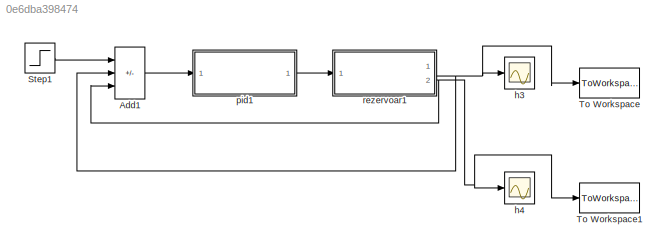
MODEL slx_0e6dba398474
KIND model
CONFIG AbsTol = auto
CONFIG EnableMultiTasking = on
CONFIG FixedStep = auto
CONFIG MaxStep = auto
CONFIG MinStep = auto
CONFIG RelTol = 1e-3
CONFIG SampleTimeConstraint = Unconstrained
CONFIG Solver = ode45
CONFIG SolverName = ode45
CONFIG StartTime = 0.0
CONFIG StopTime = 500
BLOCK [Sum] Add1
  IconShape = rectangular
  Inputs = +--
  Ports = [3, 1]
BLOCK [Step] Step1
  After = 15
  Before = 1
  SampleTime = 0
  Time = 0
BLOCK [ToWorkspace] To Workspace
  FixptAsFi = on
  MaxDataPoints = inf
  Ports = [1]
  SampleTime = -1
  VariableName = p1
BLOCK [ToWorkspace] To Workspace1
  FixptAsFi = on
  MaxDataPoints = inf
  Ports = [1]
  SampleTime = -1
  VariableName = p2
BLOCK [Scope] h3
  Floating = off
  NumInputPorts = 1
  Ports = [1]
  ScopeSpecificationString = C++SS(StrPVP('Location','[423, 334, 843, 637]'),StrPVP('Open','off'),MxPVP('AxesTitles',54,'struct(''axes1'',''%<SignalLabel>'')'),MxPVP('ScopeGraphics',57,'struct(''FigureColor'',''[0.501960784313725 0.501960784313725 0.501960784313725]'',''AxesColor'',''[1 1 1]'',''AxesTickColor'',''[0 0 0]'',''LineColors'',''[1 0 0;1 0 1;0 1 1;1 0 0;0 1 0;0 0 1]'',''LineStyles'',''-|-|-|-|-|-'',''LineWidths'','...<+236ch>
BLOCK [Scope] h4
  Floating = off
  NumInputPorts = 1
  Ports = [1]
  ScopeSpecificationString = C++SS(StrPVP('Location','[188, 365, 677, 735]'),StrPVP('Open','off'),MxPVP('AxesTitles',54,'struct(''axes1'',''%<SignalLabel>'')'),MxPVP('ScopeGraphics',57,'struct(''FigureColor'',''[0.501960784313725 0.501960784313725 0.501960784313725]'',''AxesColor'',''[1 1 1]'',''AxesTickColor'',''[0 0 0]'',''LineColors'',''[1 0 0;1 0 1;0 1 1;1 0 0;0 1 0;0 0 1]'',''LineStyles'',''-|-|-|-|-|-'',''LineWidths'','...<+236ch>
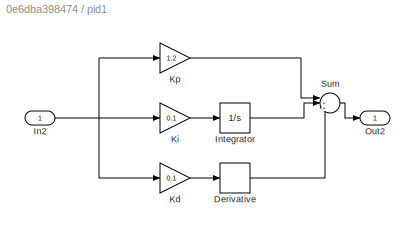
BLOCK [SubSystem] pid1
  Ports = [1, 1]
  RequestExecContextInheritance = off
BLOCK [Derivative] pid1/Derivative
BLOCK [Inport] pid1/In2
BLOCK [Integrator] pid1/Integrator
  Ports = [1, 1]
BLOCK [Gain] pid1/Kd
  Gain = 0.1
BLOCK [Gain] pid1/Ki
  Gain = 0.1
BLOCK [Gain] pid1/Kp
  Gain = 1.2
BLOCK [Outport] pid1/Out2
BLOCK [Sum] pid1/Sum
  Inputs = |+++
  Ports = [3, 1]
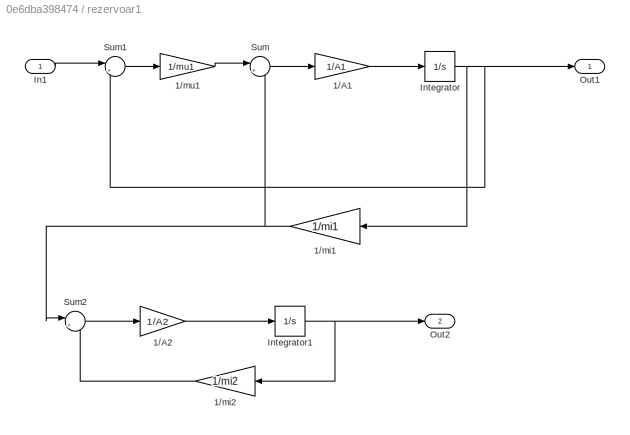
BLOCK [SubSystem] rezervoar1
  Ports = [1, 2]
  RequestExecContextInheritance = off
BLOCK [Gain] rezervoar1/1//A1
  Gain = 1/A1
BLOCK [Gain] rezervoar1/1//A2
  Gain = 1/A2
BLOCK [Gain] rezervoar1/1//mi1
  Gain = 1/mi1
  NameLocation = top
BLOCK [Gain] rezervoar1/1//mi2
  Gain = 1/mi2
  NameLocation = top
BLOCK [Gain] rezervoar1/1//mu1
  Gain = 1/mu1
BLOCK [Inport] rezervoar1/In1
BLOCK [Integrator] rezervoar1/Integrator
  InitialCondition = 1
  Ports = [1, 1]
BLOCK [Integrator] rezervoar1/Integrator1
  InitialCondition = 1
  Ports = [1, 1]
BLOCK [Outport] rezervoar1/Out1
BLOCK [Outport] rezervoar1/Out2
  Port = 2
BLOCK [Sum] rezervoar1/Sum
  Inputs = |+-
  Ports = [2, 1]
BLOCK [Sum] rezervoar1/Sum1
  Inputs = |+-
  Ports = [2, 1]
BLOCK [Sum] rezervoar1/Sum2
  Inputs = |+-
  Ports = [2, 1]
LINE Add1:1 -> pid1:1
LINE Step1:1 -> Add1:1
LINE pid1/Derivative:1 -> pid1/Sum:3
NET pid1/In2:1 -> pid1/Kd:1, pid1/Ki:1, pid1/Kp:1
LINE pid1/Integrator:1 -> pid1/Sum:2
LINE pid1/Kd:1 -> pid1/Derivative:1
LINE pid1/Ki:1 -> pid1/Integrator:1
LINE pid1/Kp:1 -> pid1/Sum:1
LINE pid1/Sum:1 -> pid1/Out2:1
LINE pid1:1 -> rezervoar1:1
LINE rezervoar1/1//A1:1 -> rezervoar1/Integrator:1
LINE rezervoar1/1//A2:1 -> rezervoar1/Integrator1:1
NET rezervoar1/1//mi1:1 -> rezervoar1/Sum2:1, rezervoar1/Sum:2
LINE rezervoar1/1//mi2:1 -> rezervoar1/Sum2:2
LINE rezervoar1/1//mu1:1 -> rezervoar1/Sum:1
LINE rezervoar1/In1:1 -> rezervoar1/Sum1:1
NET rezervoar1/Integrator1:1 -> rezervoar1/1//mi2:1, rezervoar1/Out2:1
NET rezervoar1/Integrator:1 -> rezervoar1/1//mi1:1, rezervoar1/Out1:1, rezervoar1/Sum1:2
LINE rezervoar1/Sum1:1 -> rezervoar1/1//mu1:1
LINE rezervoar1/Sum2:1 -> rezervoar1/1//A2:1
LINE rezervoar1/Sum:1 -> rezervoar1/1//A1:1
NET rezervoar1:1 -> Add1:2, To Workspace:1, h3:1
NET rezervoar1:2 -> Add1:3, To Workspace1:1, h4:1
note: NET lines group one-source signal fan-out (src -> all destinations, sorted); 1:1 wires keep LINE
